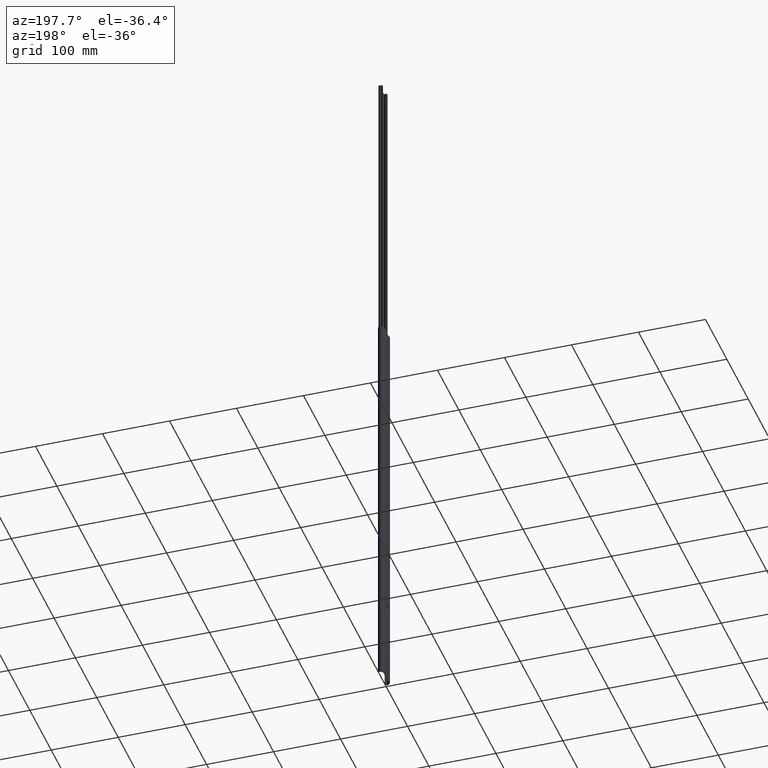
[diagram: clean part render]
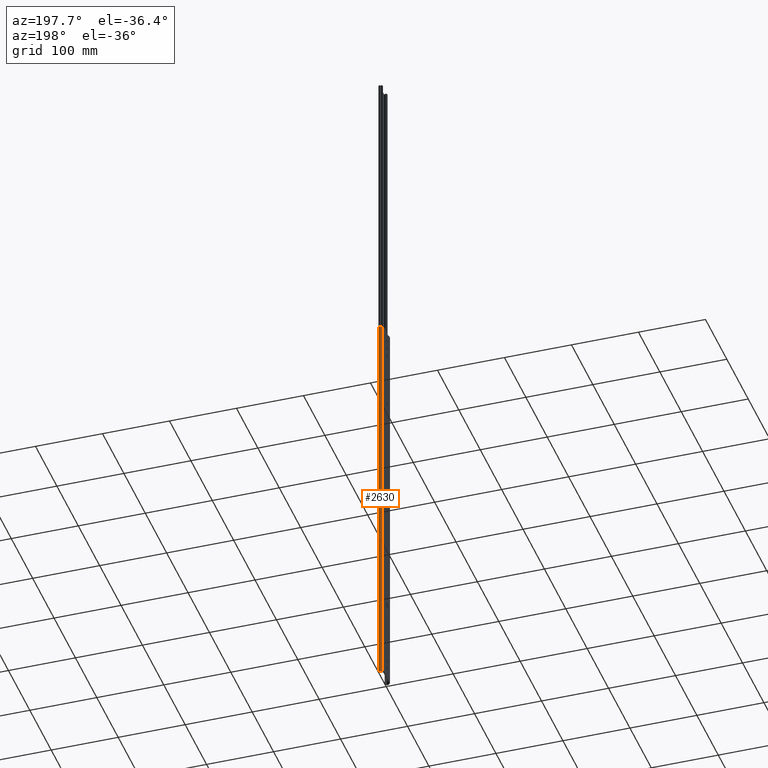
[diagram: same view with one face highlighted and labeled with its STEP entity id]
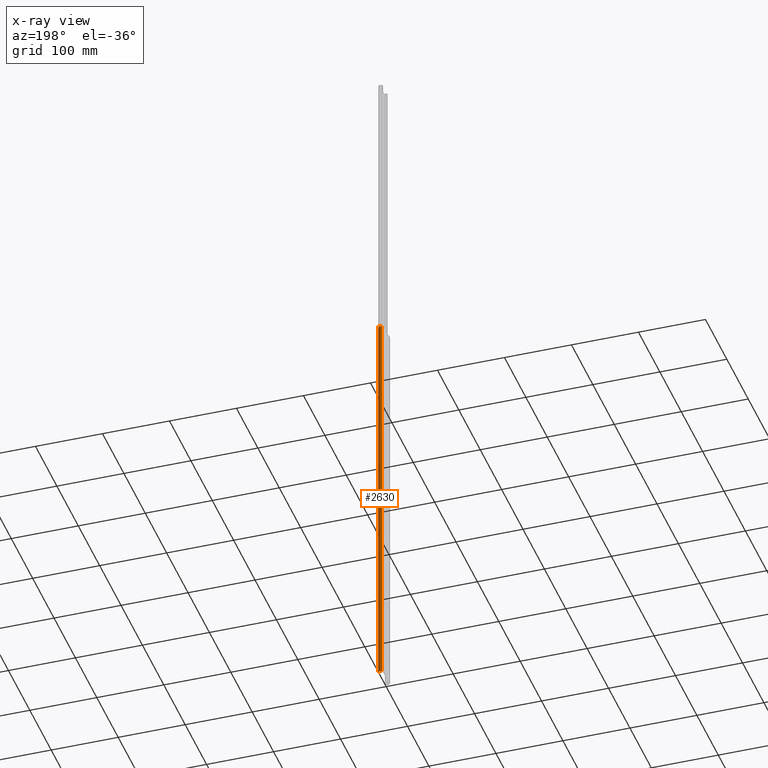
[diagram: x-ray of the same camera — body ghosted, the highlighted face saturated]
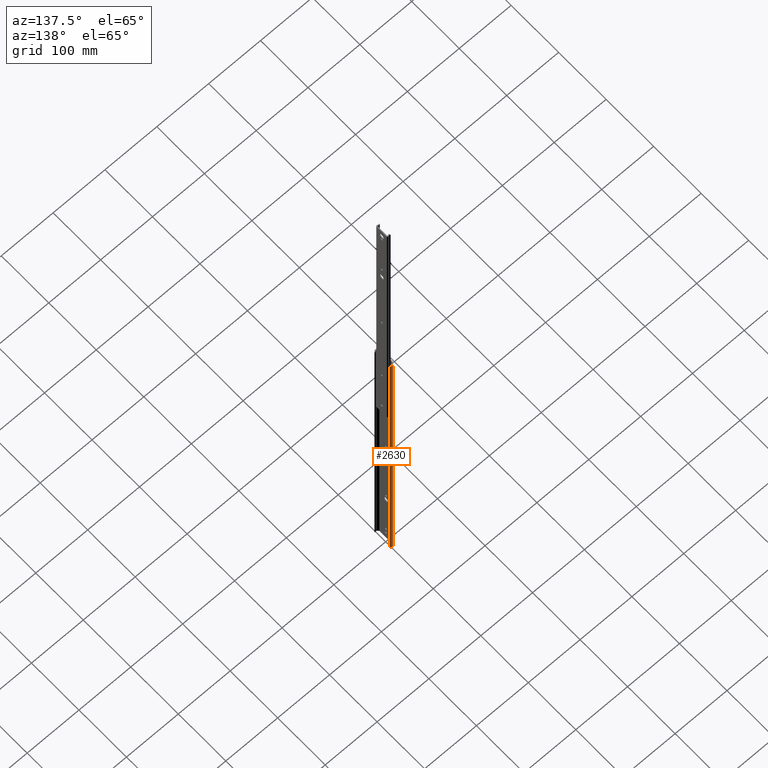
[diagram: same view with one face highlighted and labeled with its STEP entity id]
A machine part, auxiliary view. The second image highlights one B-rep face of the part: STEP entity #2630.
The next image is the same camera in x-ray: the body ghosted, the highlighted face saturated — about 0% of this face is hidden behind the body in this view.
A second angle (auxiliary view) of the same face is appended — the face is thin or edge-on in the first view.
In plain terms, the highlighted cylindrical surface (edge-blend (fillet) strip) has radius 3.88 mm, axis along (0, 0, 1).
Its self-contained STEP definition (entity closure, byte-faithful):
#7 = DIRECTION ( 'NONE',  ( 0.0000000000000000000, 0.0000000000000000000, 1.000000000000000000 ) ) ;
#9 = AXIS2_PLACEMENT_3D ( 'NONE', #2864, #4492, #858 ) ;
#61 = LINE ( 'NONE', #1745, #2743 ) ;
#247 = CARTESIAN_POINT ( 'NONE',  ( 6.493574311004107535, 16.41357431100372111, -608.8360679774996242 ) ) ;
#334 = DIRECTION ( 'NONE',  ( 0.0000000000000000000, 0.0000000000000000000, 1.000000000000000000 ) ) ;
#384 = AXIS2_PLACEMENT_3D ( 'NONE', #737, #334, #3082 ) ;
#421 = B_SPLINE_CURVE_WITH_KNOTS ( 'NONE', 3,
 ( #247, #4789, #2678, #1540, #2360, #1851, #3927, #1114 ),
 .UNSPECIFIED., .F., .F.,
 ( 4, 2, 2, 4 ),
 ( 0.0000000000000000000, 0.0005688289948012723463, 0.001137657989602544693, 0.002275315979205205612 ),
 .UNSPECIFIED. ) ;
#428 = CARTESIAN_POINT ( 'NONE',  ( 6.493574311004107535, 16.41357431100372111, -0.7639320225002002029 ) ) ;
#461 = CIRCLE ( 'NONE', #384, 3.880000000000082494 ) ;
#549 = ORIENTED_EDGE ( 'NONE', *, *, #1084, .T. ) ;
#569 = ORIENTED_EDGE ( 'NONE', *, *, #827, .T. ) ;
#672 = CARTESIAN_POINT ( 'NONE',  ( 4.686786224951891455, 17.43521334969767977, 0.0000000000000000000 ) ) ;
#737 = CARTESIAN_POINT ( 'NONE',  ( 3.750000000000128786, 13.67000000000004611, 0.0000000000000000000 ) ) ;
#748 = CARTESIAN_POINT ( 'NONE',  ( 4.686786224951890567, 17.43521334969767977, -609.5999999999999091 ) ) ;
#782 = VERTEX_POINT ( 'NONE', #4049 ) ;
#800 = B_SPLINE_CURVE_WITH_KNOTS ( 'NONE', 3,
 ( #672, #3070, #3125, #4707, #4676, #3447, #1850, #2277 ),
 .UNSPECIFIED., .F., .F.,
 ( 4, 2, 2, 4 ),
 ( 0.0000000000000000000, 0.0005688171975270675095, 0.001137634395054135019, 0.002275268790108275242 ),
 .UNSPECIFIED. ) ;
#827 = EDGE_CURVE ( 'NONE', #1497, #3748, #421, .T. ) ;
#858 = DIRECTION ( 'NONE',  ( 1.000000000000000000, 0.0000000000000000000, 0.0000000000000000000 ) ) ;
#865 = LINE ( 'NONE', #4608, #1646 ) ;
#987 = FACE_OUTER_BOUND ( 'NONE', #4166, .T. ) ;
#1084 = EDGE_CURVE ( 'NONE', #3748, #782, #1554, .T. ) ;
#1114 = CARTESIAN_POINT ( 'NONE',  ( 4.686786224951890567, 17.43521334969767977, -609.5999999999999091 ) ) ;
#1247 = CYLINDRICAL_SURFACE ( 'NONE', #9, 3.880000000000082494 ) ;
#1399 = EDGE_CURVE ( 'NONE', #3512, #4621, #800, .T. ) ;
#1497 = VERTEX_POINT ( 'NONE', #4298 ) ;
#1540 = CARTESIAN_POINT ( 'NONE',  ( 6.022140396717429844, 16.81935017835506940, -609.2705910130110851 ) ) ;
#1554 = CIRCLE ( 'NONE', #4526, 3.880000000000082494 ) ;
#1646 = VECTOR ( 'NONE', #4966, 1000.000000000000000 ) ;
#1745 = CARTESIAN_POINT ( 'NONE',  ( 1.006425688996027468, 16.41357431100367137, -609.5999999999999091 ) ) ;
#1850 = CARTESIAN_POINT ( 'NONE',  ( 6.290960979768071226, 16.61618764223985067, -0.5076441780921386870 ) ) ;
#1851 = CARTESIAN_POINT ( 'NONE',  ( 5.415784502143492496, 17.19241889151996006, -609.5434500123632233 ) ) ;
#2219 = EDGE_CURVE ( 'NONE', #1497, #4621, #865, .T. ) ;
#2277 = CARTESIAN_POINT ( 'NONE',  ( 6.493574311004107535, 16.41357431100372111, -0.7639320225002002029 ) ) ;
#2360 = CARTESIAN_POINT ( 'NONE',  ( 5.877593972368051922, 16.91957106438277947, -609.3528233282906967 ) ) ;
#2537 = ORIENTED_EDGE ( 'NONE', *, *, #4597, .F. ) ;
#2630 = ADVANCED_FACE ( 'NONE', ( #987 ), #1247, .T. ) ;
#2678 = CARTESIAN_POINT ( 'NONE',  ( 6.278555444656807261, 16.61744565541026120, -609.0764383394005108 ) ) ;
#2743 = VECTOR ( 'NONE', #3739, 1000.000000000000000 ) ;
#2864 = CARTESIAN_POINT ( 'NONE',  ( 3.750000000000128786, 13.67000000000004611, -609.5999999999999091 ) ) ;
#2950 = ORIENTED_EDGE ( 'NONE', *, *, #2219, .F. ) ;
#3070 = CARTESIAN_POINT ( 'NONE',  ( 4.873212192223960848, 17.38883051242025957, -6.098637220230962441E-17 ) ) ;
#3082 = DIRECTION ( 'NONE',  ( 1.000000000000000000, 0.0000000000000000000, 0.0000000000000000000 ) ) ;
#3125 = CARTESIAN_POINT ( 'NONE',  ( 5.053119414895008710, 17.32943294281635715, -0.01346408756571375667 ) ) ;
#3423 = CARTESIAN_POINT ( 'NONE',  ( 1.006425688996027468, 16.41357431100367137, 0.0000000000000000000 ) ) ;
#3447 = CARTESIAN_POINT ( 'NONE',  ( 6.030414643740570568, 16.82943672234210197, -0.3100214767038796948 ) ) ;
#3512 = VERTEX_POINT ( 'NONE', #3689 ) ;
#3689 = CARTESIAN_POINT ( 'NONE',  ( 4.686786224951891455, 17.43521334969767977, 0.0000000000000000000 ) ) ;
#3691 = DIRECTION ( 'NONE',  ( 1.000000000000000000, 0.0000000000000000000, 0.0000000000000000000 ) ) ;
#3739 = DIRECTION ( 'NONE',  ( 0.0000000000000000000, 0.0000000000000000000, 1.000000000000000000 ) ) ;
#3748 = VERTEX_POINT ( 'NONE', #748 ) ;
#3927 = CARTESIAN_POINT ( 'NONE',  ( 5.059828519016763337, 17.34240031363627565, -609.6000000000000227 ) ) ;
#4049 = CARTESIAN_POINT ( 'NONE',  ( 1.006425688996027468, 16.41357431100367137, -609.5999999999999091 ) ) ;
#4166 = EDGE_LOOP ( 'NONE', ( #2950, #569, #549, #4281, #2537, #4980 ) ) ;
#4281 = ORIENTED_EDGE ( 'NONE', *, *, #4734, .T. ) ;
#4298 = CARTESIAN_POINT ( 'NONE',  ( 6.493574311004107535, 16.41357431100372111, -608.8360679774996242 ) ) ;
#4410 = CARTESIAN_POINT ( 'NONE',  ( 3.750000000000128786, 13.67000000000004611, -609.5999999999999091 ) ) ;
#4492 = DIRECTION ( 'NONE',  ( 0.0000000000000000000, 0.0000000000000000000, 1.000000000000000000 ) ) ;
#4526 = AXIS2_PLACEMENT_3D ( 'NONE', #4410, #7, #3691 ) ;
#4597 = EDGE_CURVE ( 'NONE', #3512, #5162, #461, .T. ) ;
#4608 = CARTESIAN_POINT ( 'NONE',  ( 6.493574311004107535, 16.41357431100372111, -609.5999999999999091 ) ) ;
#4621 = VERTEX_POINT ( 'NONE', #428 ) ;
#4676 = CARTESIAN_POINT ( 'NONE',  ( 5.568397112095065715, 17.10217347757845374, -0.1196648832641343946 ) ) ;
#4707 = CARTESIAN_POINT ( 'NONE',  ( 5.399970306516992835, 17.18669840334057852, -0.07281536792437688643 ) ) ;
#4734 = EDGE_CURVE ( 'NONE', #782, #5162, #61, .T. ) ;
#4789 = CARTESIAN_POINT ( 'NONE',  ( 6.392309465346000863, 16.51483915666184643, -608.9641590011736980 ) ) ;
#4966 = DIRECTION ( 'NONE',  ( 0.0000000000000000000, 0.0000000000000000000, 1.000000000000000000 ) ) ;
#4980 = ORIENTED_EDGE ( 'NONE', *, *, #1399, .T. ) ;
#5162 = VERTEX_POINT ( 'NONE', #3423 ) ;